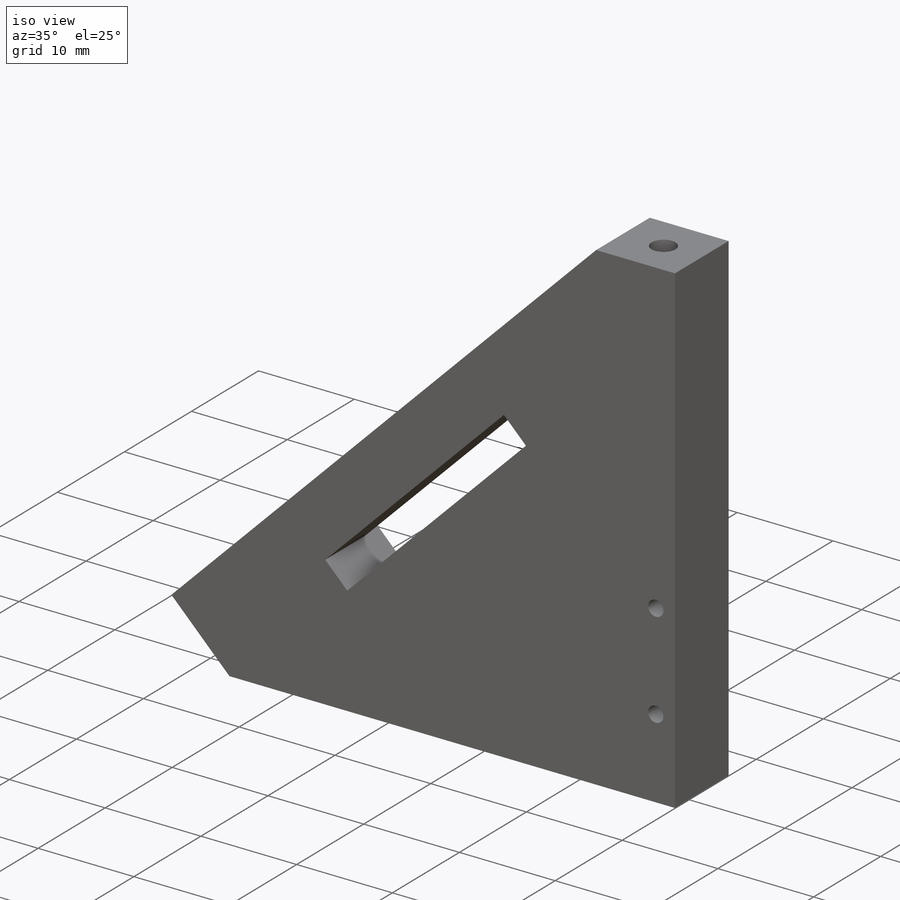
[diagram: iso view]
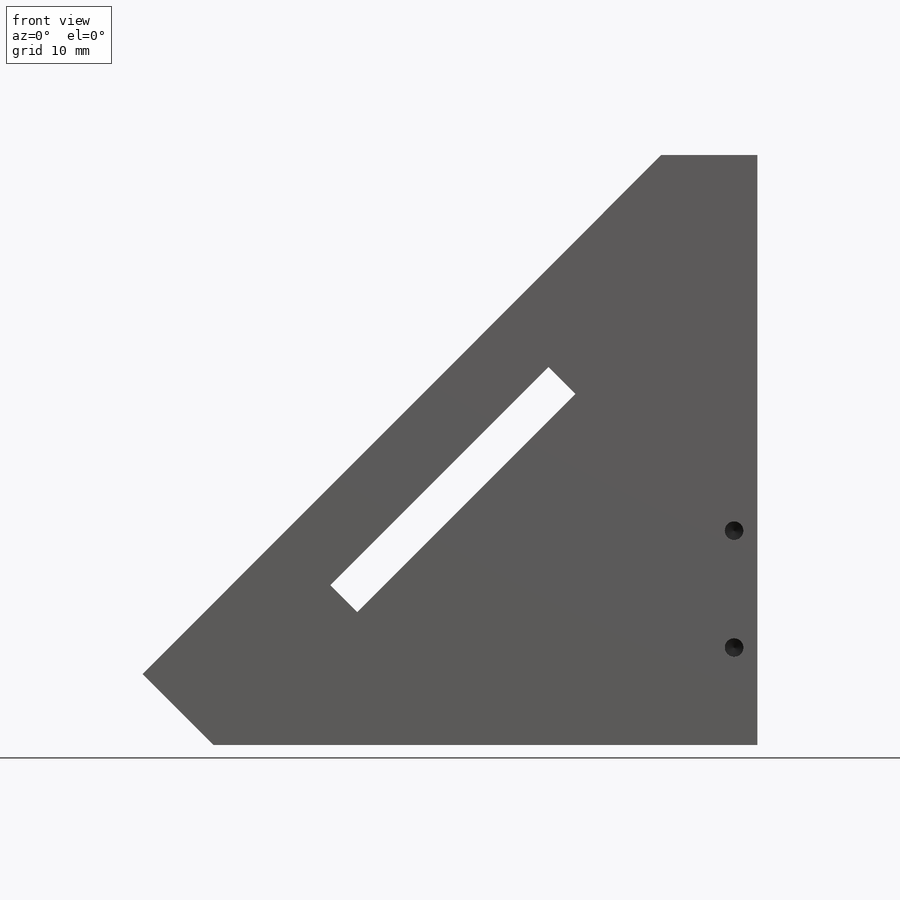
[diagram: front view]
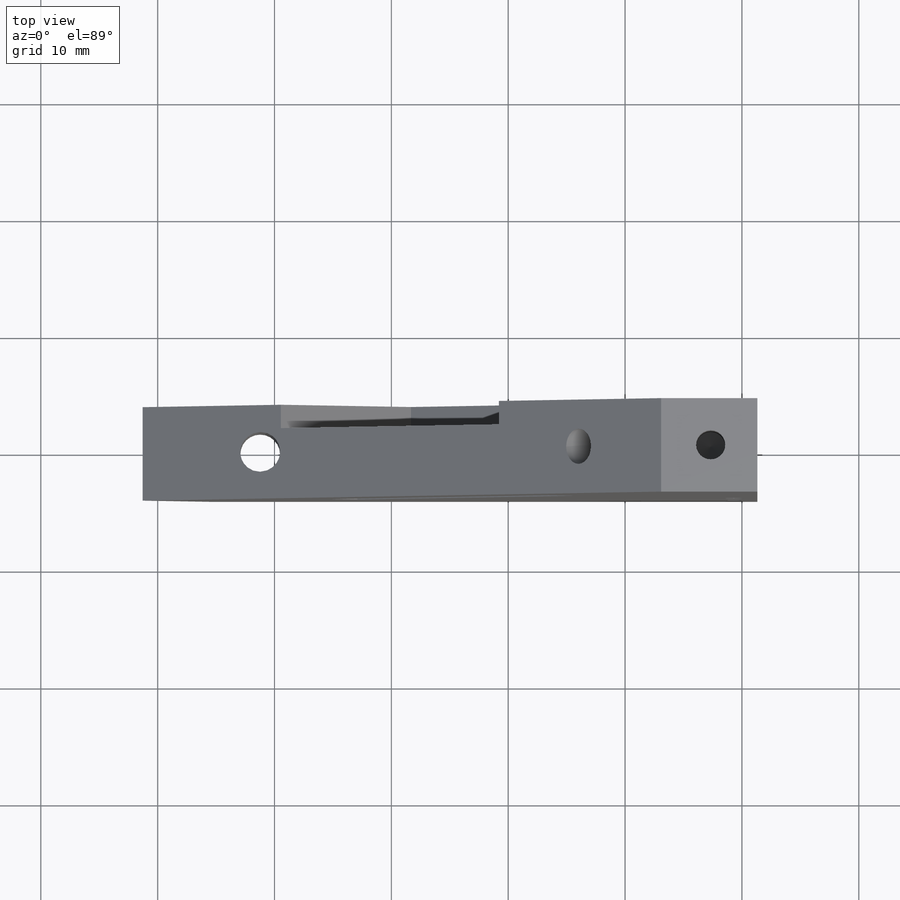
[diagram: top view]
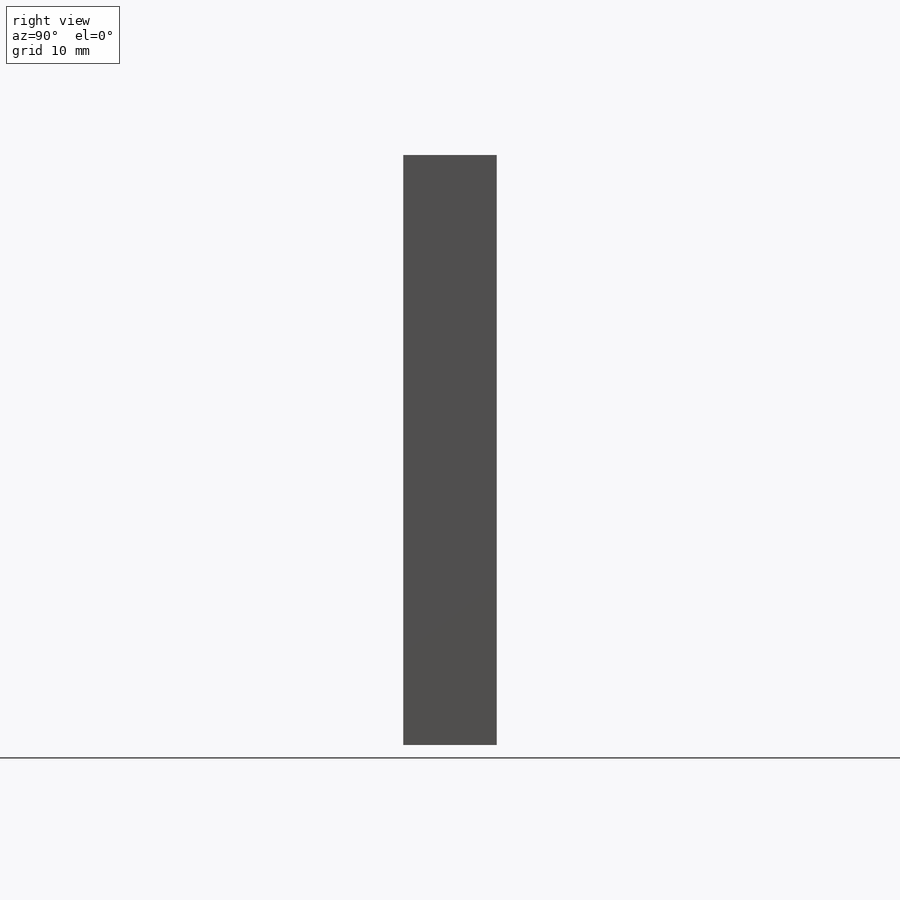
[diagram: right view]
SOLIDWORKS PART (.sldprt)
format: sldprt  version: not decoded by parser v0  size: 434,688 bytes
history: native  units: mm
features: sketch x22, cut_extrude x6, hole x4, thread x3, extrude x2, material x1 (+12 scaffold rows collapsed)
feature tree (50):
  scaffold x12  (default folders/planes/origin — collapsed)
  material  "A286 Iron Base Superalloy"
  sketch  "Sketch2"  dims[c1.D1=10.0mm c1.D2=10.0mm c1.D3=15.31mm c1.D4=9.83mm c1.D5=59.68mm c1.D6=54.2mm c1.D7=~62.748656mm c2.D6=62.78mm c2.D7=~54.244316mm]
  extrude  "Boss-Extrude1"  Depth=8mm
  sketch  "Sketch3"
  extrude  "Boss-Extrude2"  Depth=5.46mm
  sketch  "Sketch4"  dims[c1.D1=30.46mm c1.D2=3.25mm c1.D3=62.78mm c2.D3=~0.028599deg c3.D3=11.0mm c3.D4=26.4mm c4.D3=26.4mm c5.D3=~0.028599deg c6.D3=~18.667619mm c7.D3=~0.028599deg]
  cut_extrude  "Cut-Extrude1"  [1 undecoded]
  sketch  "Sketch5"  dims[D1=2.16mm]
  cut_extrude  "Cut-Extrude2"  Depth=10mm
  sketch  "Sketch7"
  cut_extrude  "Cut-Extrude7"  Depth=10mm
  sketch  "Sketch8"  dims[D1=3.0mm D2=3.0mm D3=5.0mm D4=5.0mm]
  sketch  "Sketch9"  dims[D1=3.0mm D2=19.0mm]
  hole  "CBORE for M3 SHCS1"  Diameter=3.4mm Depth=52.605404mm
  sketch  "Sketch11"
  sketch  "Sketch10"  dims[hole-wizard template sketch: 42 standard entries collapsed; hole parameters kept: c12.Thru Hole Depth=~52.605404mm c12.C'Bore Dia.=6.5mm c12.C'Bore Depth=3.0mm]
  sketch  "Sketch13"  dims[D1=3.0mm D2=3.0mm D3=8.32mm D4=10.0mm D5=2.0mm D6=2.0mm]
  sketch  "Sketch16"  dims[c1.D1=3.0mm c1.D2=3.0mm c1.D3=10.0mm c1.D4=10.0mm c2.D3=10.0mm c2.D4=8.32mm c2.D5=2.0mm c2.D6=2.0mm]
  hole  "M2x0.4 Tapped Hole1"  Diameter=1.6mm Depth=7mm
  sketch  "Sketch18"
  sketch  "Sketch17"  dims[hole-wizard template sketch: 47 standard entries collapsed; hole parameters kept: c15.Tap Drill Depth=7.0mm c15.D3=~14.816244mm c15.Drill Angle=118.0deg]
  thread  "Hole Thread3"  Diameter=4mm  [1 undecoded]
  thread  "Hole Thread4"  Diameter=4mm  [1 undecoded]
  sketch  "Sketch19"  dims[D1=3.0mm D2=4.0mm]
  hole  "CBORE for M3 SHCS2"  Diameter=3.4mm Depth=57.544316mm
  sketch  "Sketch21"
  sketch  "Sketch20"  dims[hole-wizard template sketch: 42 standard entries collapsed; hole parameters kept: c12.Thru Hole Depth=~57.544316mm c12.C'Bore Dia.=6.5mm c12.C'Bore Depth=3.0mm]
  sketch  "Sketch22"
  cut_extrude  "Cut-Extrude10"  [1 undecoded]
  sketch  "Sketch23"  dims[D1=3.0mm D2=4.0mm D3=4.0mm]
  sketch  "Sketch24"  dims[D1=3.0mm D2=10.0mm D3=4.0mm]
  cut_extrude  "Cut-Extrude12"  Depth=5.5mm
  hole  "M3x0.5 Tapped Hole3"  Diameter=2.5mm Depth=8.5mm
  sketch  "Sketch27"
  sketch  "Sketch26"  dims[hole-wizard template sketch: 50 standard entries collapsed; hole parameters above]
  thread  "Hole Thread5"  Diameter=6mm  [1 undecoded]
  sketch  "Sketch28"  dims[c1.D1=~18.676937mm c2.D1=~0.028599deg c3.D1=6.5mm]
  cut_extrude  "Cut-Extrude13"  Depth=2mm
decode coverage: 28 of 37 modeling features carry decoded parameters
note: ~ marks probable driven/reference dimensions
note: 5 parameter values undecoded
summary: Diameter pulled from absorbed wizard sketch
note: suppression state not decoded; provenance and decode notes live in map.json
